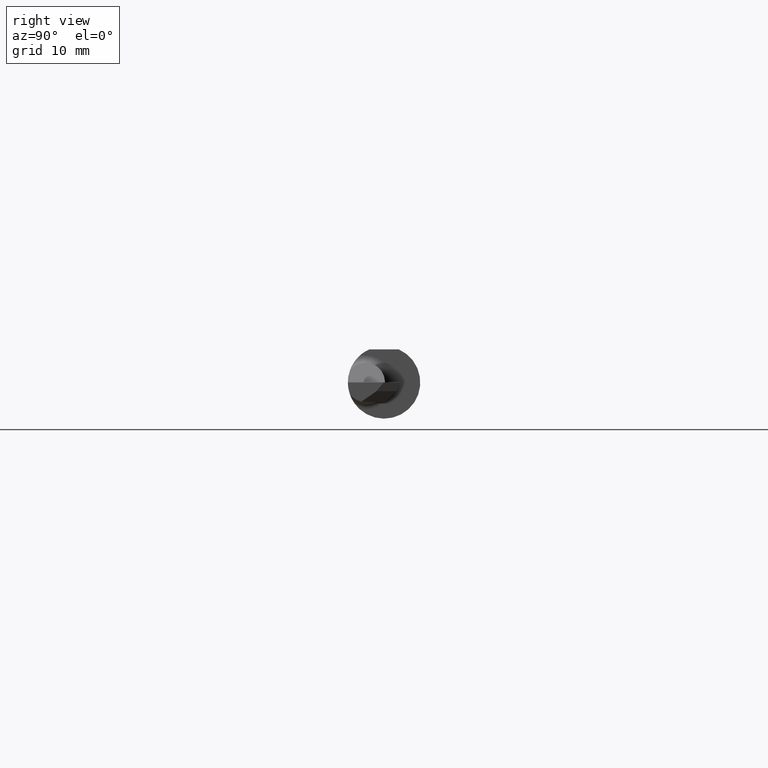
[diagram: clean part render]
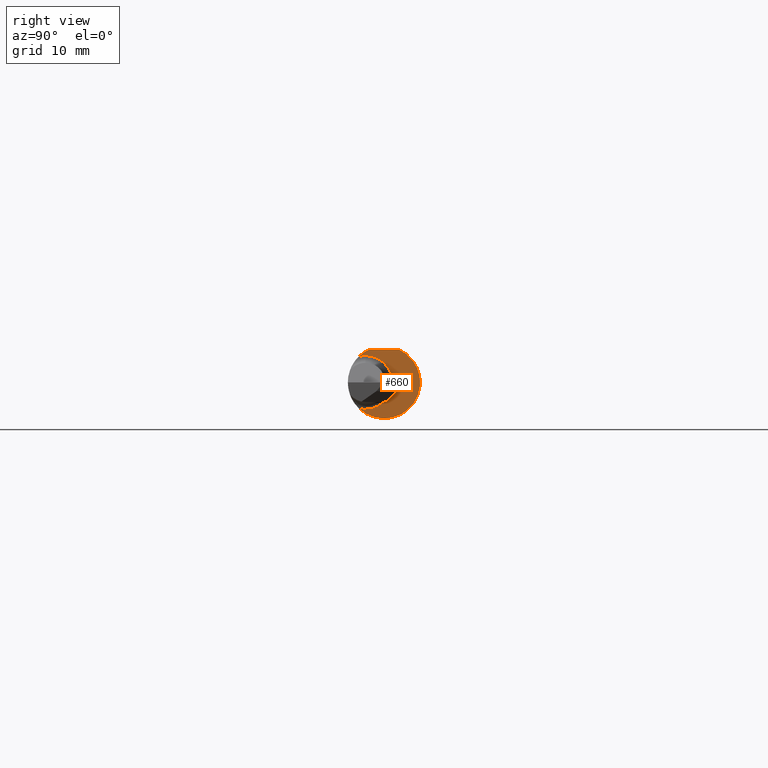
[diagram: same view with one face highlighted and labeled with its STEP entity id]
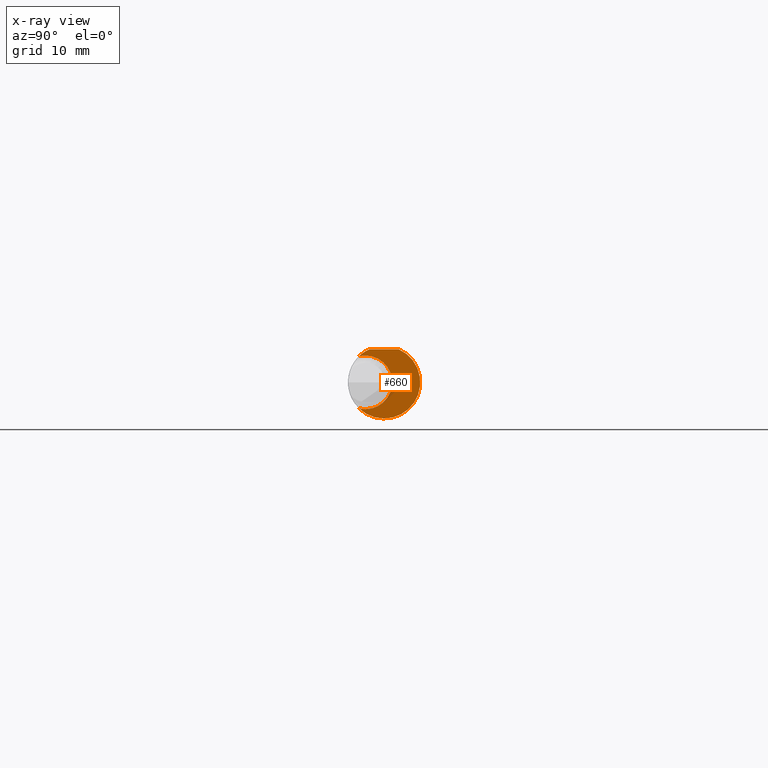
[diagram: x-ray of the same camera — body ghosted, the highlighted face saturated]
A machine part, right view. The second image highlights one B-rep face of the part: STEP entity #660.
The next image is the same camera in x-ray: the body ghosted, the highlighted face saturated — about 4% of this face is hidden behind the body in this view.
In plain terms, the highlighted planar face has unit normal (1, 0, 0).
Its self-contained STEP definition (entity closure, byte-faithful):
#2 = ORIENTED_EDGE ( 'NONE', *, *, #498, .T. ) ;
#20 = CIRCLE ( 'NONE', #298, 0.1248500000000000026 ) ;
#38 = ORIENTED_EDGE ( 'NONE', *, *, #881, .T. ) ;
#73 = AXIS2_PLACEMENT_3D ( 'NONE', #408, #401, #95 ) ;
#95 = DIRECTION ( 'NONE',  ( 0.000000000000000000, 0.000000000000000000, -1.000000000000000000 ) ) ;
#114 = EDGE_CURVE ( 'NONE', #171, #329, #207, .T. ) ;
#133 = DIRECTION ( 'NONE',  ( 1.000000000000000000, 0.000000000000000000, 0.000000000000000000 ) ) ;
#144 = CARTESIAN_POINT ( 'NONE',  ( 2.075000000000000178, -0.06435000000000003217, 0.000000000000000000 ) ) ;
#171 = VERTEX_POINT ( 'NONE', #448 ) ;
#206 = CARTESIAN_POINT ( 'NONE',  ( 2.075000000000000178, -0.06435000000000003217, 0.000000000000000000 ) ) ;
#207 = CIRCLE ( 'NONE', #335, 0.1248500000000000026 ) ;
#216 = DIRECTION ( 'NONE',  ( -1.000000000000000000, -0.000000000000000000, -0.000000000000000000 ) ) ;
#219 = AXIS2_PLACEMENT_3D ( 'NONE', #518, #216, #594 ) ;
#224 = VERTEX_POINT ( 'NONE', #403 ) ;
#226 = CARTESIAN_POINT ( 'NONE',  ( 2.075000000000000178, -0.05124158467494927677, 0.1138500000000000068 ) ) ;
#270 = DIRECTION ( 'NONE',  ( 1.000000000000000000, 0.000000000000000000, 0.000000000000000000 ) ) ;
#281 = DIRECTION ( 'NONE',  ( 0.000000000000000000, 0.000000000000000000, -1.000000000000000000 ) ) ;
#291 = DIRECTION ( 'NONE',  ( -1.000000000000000000, -0.000000000000000000, -0.000000000000000000 ) ) ;
#298 = AXIS2_PLACEMENT_3D ( 'NONE', #956, #270, #572 ) ;
#329 = VERTEX_POINT ( 'NONE', #414 ) ;
#335 = AXIS2_PLACEMENT_3D ( 'NONE', #758, #133, #598 ) ;
#383 = CIRCLE ( 'NONE', #860, 0.09250000000000002665 ) ;
#401 = DIRECTION ( 'NONE',  ( 1.000000000000000000, 0.000000000000000000, 0.000000000000000000 ) ) ;
#403 = CARTESIAN_POINT ( 'NONE',  ( 2.075000000000000178, -0.06435000000000003217, 0.09250000000000002665 ) ) ;
#408 = CARTESIAN_POINT ( 'NONE',  ( 2.075000000000000178, 0.2031499999999999972, 0.000000000000000000 ) ) ;
#412 = EDGE_LOOP ( 'NONE', ( #2, #983, #38, #655, #818, #634 ) ) ;
#414 = CARTESIAN_POINT ( 'NONE',  ( 2.075000000000000178, 0.05124158467494929065, 0.1138500000000000068 ) ) ;
#422 = CARTESIAN_POINT ( 'NONE',  ( 2.075000000000000178, -0.08680804195804191215, 0.08973230383429835200 ) ) ;
#448 = CARTESIAN_POINT ( 'NONE',  ( 2.075000000000000178, -0.08680804195804191215, -0.08973230383429835200 ) ) ;
#498 = EDGE_CURVE ( 'NONE', #618, #778, #20, .T. ) ;
#518 = CARTESIAN_POINT ( 'NONE',  ( 2.075000000000000178, -0.06435000000000003217, 0.000000000000000000 ) ) ;
#541 = CIRCLE ( 'NONE', #682, 0.09250000000000002665 ) ;
#565 = FACE_OUTER_BOUND ( 'NONE', #412, .T. ) ;
#568 = EDGE_CURVE ( 'NONE', #616, #171, #905, .T. ) ;
#572 = DIRECTION ( 'NONE',  ( 0.000000000000000000, 0.000000000000000000, -1.000000000000000000 ) ) ;
#586 = CARTESIAN_POINT ( 'NONE',  ( 2.075000000000000178, 0.1000000000000000056, 0.1138500000000000068 ) ) ;
#594 = DIRECTION ( 'NONE',  ( 0.000000000000000000, 0.000000000000000000, -1.000000000000000000 ) ) ;
#598 = DIRECTION ( 'NONE',  ( 0.000000000000000000, 0.000000000000000000, -1.000000000000000000 ) ) ;
#616 = VERTEX_POINT ( 'NONE', #837 ) ;
#618 = VERTEX_POINT ( 'NONE', #226 ) ;
#634 = ORIENTED_EDGE ( 'NONE', *, *, #904, .T. ) ;
#635 = PLANE ( 'NONE',  #73 ) ;
#652 = VECTOR ( 'NONE', #667, 39.37007874015748143 ) ;
#655 = ORIENTED_EDGE ( 'NONE', *, *, #568, .T. ) ;
#660 = ADVANCED_FACE ( 'NONE', ( #565 ), #635, .T. ) ;
#667 = DIRECTION ( 'NONE',  ( 0.000000000000000000, -1.000000000000000000, 0.000000000000000000 ) ) ;
#682 = AXIS2_PLACEMENT_3D ( 'NONE', #144, #910, #830 ) ;
#758 = CARTESIAN_POINT ( 'NONE',  ( 2.075000000000000178, 0.000000000000000000, 0.000000000000000000 ) ) ;
#778 = VERTEX_POINT ( 'NONE', #422 ) ;
#811 = LINE ( 'NONE', #586, #652 ) ;
#818 = ORIENTED_EDGE ( 'NONE', *, *, #114, .T. ) ;
#830 = DIRECTION ( 'NONE',  ( 0.000000000000000000, 5.352945392990784272E-15, -1.000000000000000000 ) ) ;
#837 = CARTESIAN_POINT ( 'NONE',  ( 2.075000000000000178, -0.06435000000000003217, -0.09250000000000002665 ) ) ;
#860 = AXIS2_PLACEMENT_3D ( 'NONE', #206, #291, #281 ) ;
#881 = EDGE_CURVE ( 'NONE', #224, #616, #383, .T. ) ;
#904 = EDGE_CURVE ( 'NONE', #329, #618, #811, .T. ) ;
#905 = CIRCLE ( 'NONE', #219, 0.09250000000000002665 ) ;
#910 = DIRECTION ( 'NONE',  ( -1.000000000000000000, -0.000000000000000000, -0.000000000000000000 ) ) ;
#926 = EDGE_CURVE ( 'NONE', #778, #224, #541, .T. ) ;
#956 = CARTESIAN_POINT ( 'NONE',  ( 2.075000000000000178, 0.000000000000000000, 0.000000000000000000 ) ) ;
#983 = ORIENTED_EDGE ( 'NONE', *, *, #926, .T. ) ;